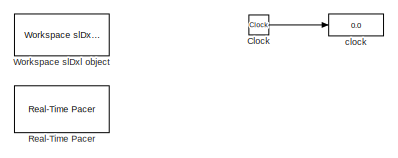
[diagram: root canvas - part 1/3, top left region]
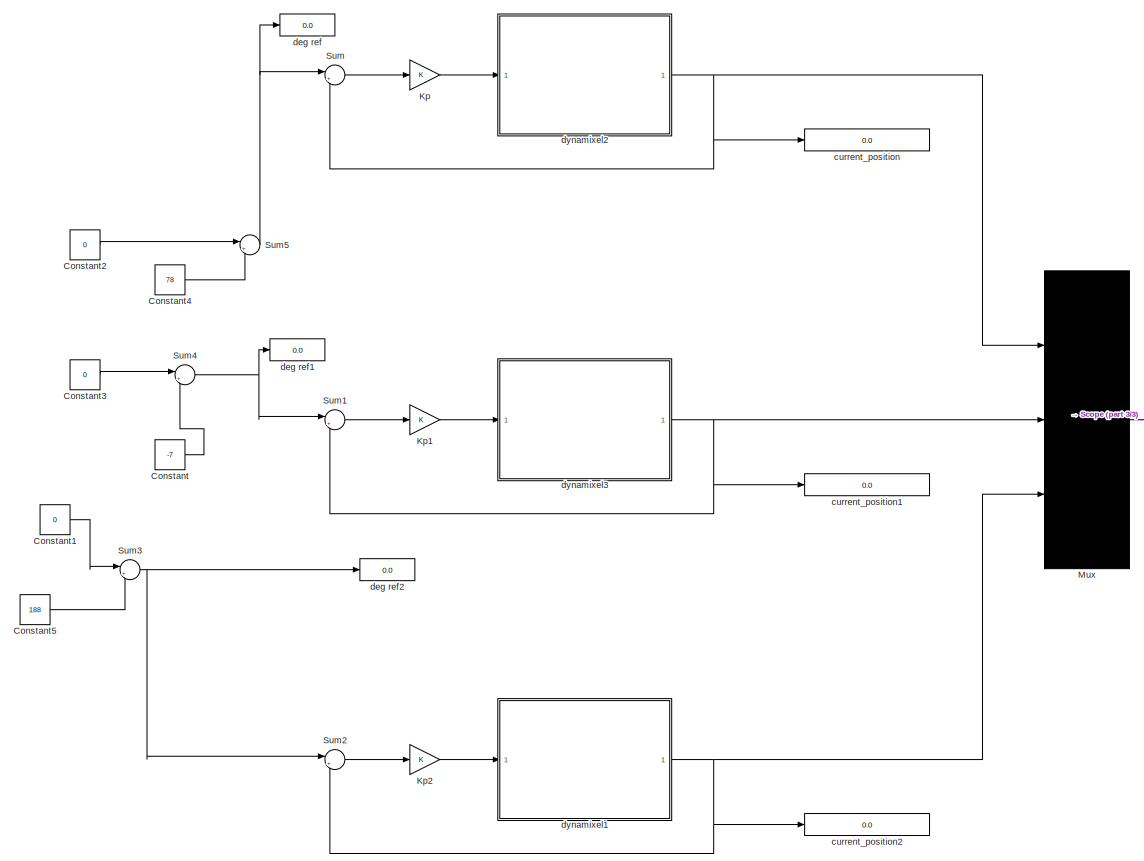
[diagram: root canvas - part 2/3, most of the canvas]
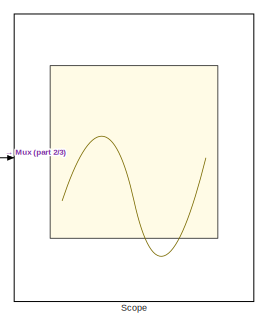
[diagram: root canvas - part 3/3, middle right region]
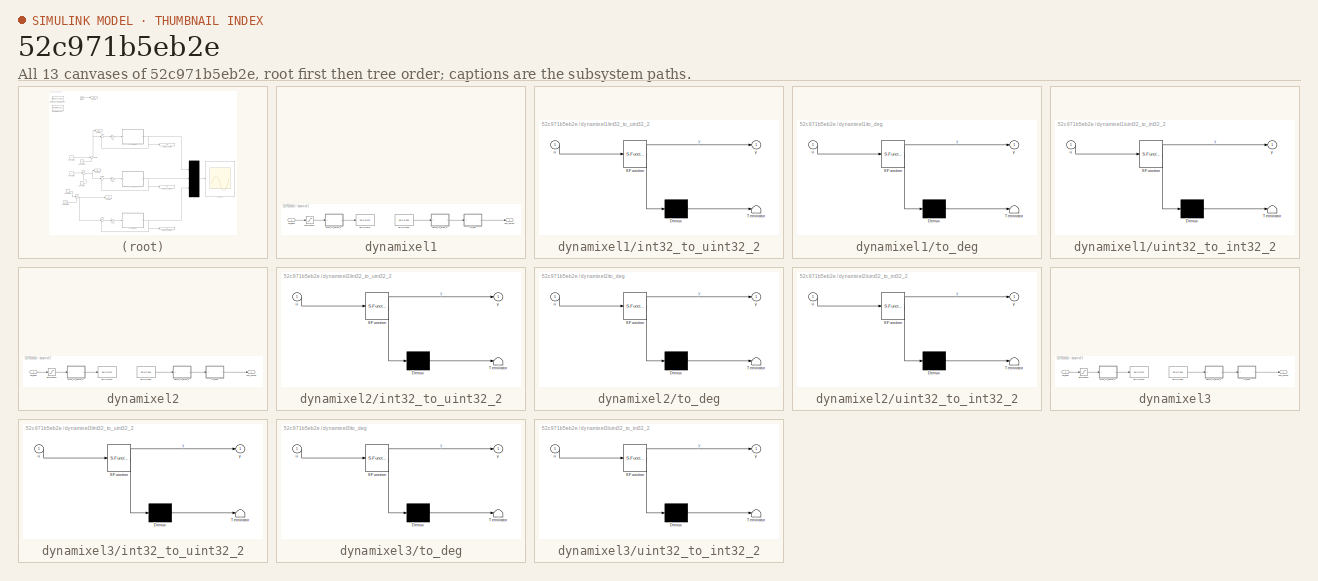
[diagram: thumbnail index - all 13 canvases of the model, root first then tree order]
MODEL slx_52c971b5eb2e
KIND model
CONFIG AbsTol = auto
CONFIG EnableMultiTasking = off
CONFIG FixedStep = Ts
CONFIG MaxStep = auto
CONFIG MinStep = auto
CONFIG RelTol = 1e-3
CONFIG SampleTimeConstraint = Unconstrained
CONFIG SolverName = FixedStepAuto
CONFIG StartTime = 0.0
CONFIG StopTime = inf
BLOCK [Clock] Clock
BLOCK [Constant] Constant
  Value = -7
BLOCK [Constant] Constant1
  Value = 0
BLOCK [Constant] Constant2
  Value = 0
BLOCK [Constant] Constant3
  Value = 0
BLOCK [Constant] Constant4
  Value = 78
BLOCK [Constant] Constant5
  Value = 188
BLOCK [Gain] Kp
BLOCK [Gain] Kp1
BLOCK [Gain] Kp2
BLOCK [Mux] Mux
  DisplayOption = bar
  Inputs = 3
BLOCK [Reference] Real-Time Pacer  REF=slDxl_lib_old/Real-Time Pacer
  Commented = on
  SourceBlock = slDxl_lib_old/Real-Time Pacer
  SourceType = RealTime_Pacer
BLOCK [Scope] Scope
  Floating = off
  NumInputPorts = 1
  ScopeSpecificationString = Simulink.scopes.TimeScopeBlockCfg('CurrentConfiguration', extmgr.ConfigurationSet(extmgr.Configuration('Core','General UI',true,'FigureColor',[0.156862745098039 0.156862745098039 0.156862745098039]),extmgr.Configuration('Core','Source UI',true),extmgr.Configuration('Sources','WiredSimulink',true,'DataLoggingSaveFormat','StructureWithTime','DataLoggingDecimation','1','DataLoggingDecimateData',true)...<+2763ch>
BLOCK [Sum] Sum
  Inputs = |+-
BLOCK [Sum] Sum1
  Inputs = |+-
BLOCK [Sum] Sum2
  Inputs = |+-
BLOCK [Sum] Sum3
  Inputs = |++
BLOCK [Sum] Sum4
  Inputs = |++
BLOCK [Sum] Sum5
  Inputs = |++
BLOCK [Reference] Workspace slDxl object  REF=slDxl_lib_old/Workspace slDxl object
  SourceBlock = slDxl_lib_old/Workspace slDxl object
  SourceType = slDxl Setup
BLOCK [Display] clock
  Decimation = 1
  Format = long
BLOCK [Display] current_position
  Decimation = 5
  Format = long
BLOCK [Display] current_position1
  Decimation = 5
  Format = long
BLOCK [Display] current_position2
  Decimation = 5
  Format = long
BLOCK [Display] deg ref
  Decimation = 1
  Format = long
BLOCK [Display] deg ref1
  Decimation = 1
  Format = long
BLOCK [Display] deg ref2
  Decimation = 1
  Format = long
BLOCK [SubSystem] dynamixel1
BLOCK [Saturate] dynamixel1/Saturation2
  LowerLimit = -50
  NameLocation = top
  UpperLimit = 50
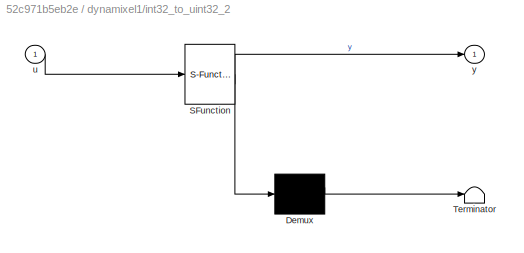
BLOCK [SubSystem] dynamixel1/int32_to_uint32_2
  ErrorFcn = Stateflow.Translate.translate
  PermitHierarchicalResolution = ExplicitOnly
  SFBlockType = MATLAB Function
  TreatAsAtomicUnit = on
BLOCK [Demux] dynamixel1/int32_to_uint32_2/ Demux 
  Outputs = 1
BLOCK [S-Function] dynamixel1/int32_to_uint32_2/ SFunction 
  EnableBusSupport = on
  FunctionName = sf_sfun
  PortCounts = [1 2]
  SFcnIsStateOwnerBlock = off
  SFunctionDeploymentMode = off
  Tag = Stateflow S-Function 7
BLOCK [Terminator] dynamixel1/int32_to_uint32_2/ Terminator 
BLOCK [Inport] dynamixel1/int32_to_uint32_2/u
BLOCK [Outport] dynamixel1/int32_to_uint32_2/y
  VectorParamsAs1DForOutWhenUnconnected = off
BLOCK [Outport] dynamixel1/pos_output
  VectorParamsAs1DForOutWhenUnconnected = off
BLOCK [Reference] dynamixel1/slDxl Read1  REF=slDxl_lib_old/slDxl Read
  SourceBlock = slDxl_lib_old/slDxl Read
BLOCK [Reference] dynamixel1/slDxl Write1  REF=slDxl_lib_old/slDxl Write
  SourceBlock = slDxl_lib_old/slDxl Write
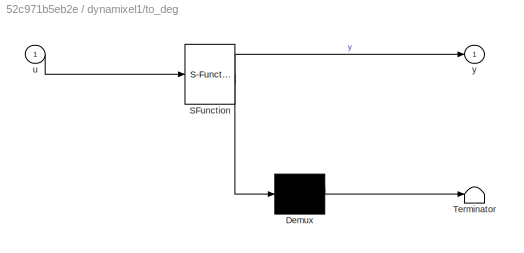
BLOCK [SubSystem] dynamixel1/to_deg
  ErrorFcn = Stateflow.Translate.translate
  PermitHierarchicalResolution = ExplicitOnly
  SFBlockType = MATLAB Function
  TreatAsAtomicUnit = on
BLOCK [Demux] dynamixel1/to_deg/ Demux 
  Outputs = 1
BLOCK [S-Function] dynamixel1/to_deg/ SFunction 
  EnableBusSupport = on
  FunctionName = sf_sfun
  PortCounts = [1 2]
  SFcnIsStateOwnerBlock = off
  SFunctionDeploymentMode = off
  Tag = Stateflow S-Function 8
BLOCK [Terminator] dynamixel1/to_deg/ Terminator 
BLOCK [Inport] dynamixel1/to_deg/u
BLOCK [Outport] dynamixel1/to_deg/y
  VectorParamsAs1DForOutWhenUnconnected = off
BLOCK [SubSystem] dynamixel1/uint32_to_int32_2
  ErrorFcn = Stateflow.Translate.translate
  PermitHierarchicalResolution = ExplicitOnly
  SFBlockType = MATLAB Function
  TreatAsAtomicUnit = on
BLOCK [Demux] dynamixel1/uint32_to_int32_2/ Demux 
  Outputs = 1
BLOCK [S-Function] dynamixel1/uint32_to_int32_2/ SFunction 
  EnableBusSupport = on
  FunctionName = sf_sfun
  PortCounts = [1 2]
  SFcnIsStateOwnerBlock = off
  SFunctionDeploymentMode = off
  Tag = Stateflow S-Function 9
BLOCK [Terminator] dynamixel1/uint32_to_int32_2/ Terminator 
BLOCK [Inport] dynamixel1/uint32_to_int32_2/u
BLOCK [Outport] dynamixel1/uint32_to_int32_2/y
  VectorParamsAs1DForOutWhenUnconnected = off
BLOCK [Inport] dynamixel1/vel_input
BLOCK [SubSystem] dynamixel2
BLOCK [Saturate] dynamixel2/Saturation2
  LowerLimit = -50
  NameLocation = top
  UpperLimit = 50
BLOCK [SubSystem] dynamixel2/int32_to_uint32_2
  ErrorFcn = Stateflow.Translate.translate
  PermitHierarchicalResolution = ExplicitOnly
  SFBlockType = MATLAB Function
  TreatAsAtomicUnit = on
BLOCK [Demux] dynamixel2/int32_to_uint32_2/ Demux 
  Outputs = 1
BLOCK [S-Function] dynamixel2/int32_to_uint32_2/ SFunction 
  EnableBusSupport = on
  FunctionName = sf_sfun
  PortCounts = [1 2]
  SFcnIsStateOwnerBlock = off
  SFunctionDeploymentMode = off
  Tag = Stateflow S-Function 4
BLOCK [Terminator] dynamixel2/int32_to_uint32_2/ Terminator 
BLOCK [Inport] dynamixel2/int32_to_uint32_2/u
BLOCK [Outport] dynamixel2/int32_to_uint32_2/y
  VectorParamsAs1DForOutWhenUnconnected = off
BLOCK [Outport] dynamixel2/pos_output
  VectorParamsAs1DForOutWhenUnconnected = off
BLOCK [Reference] dynamixel2/slDxl Read1  REF=slDxl_lib_old/slDxl Read
  SourceBlock = slDxl_lib_old/slDxl Read
BLOCK [Reference] dynamixel2/slDxl Write1  REF=slDxl_lib_old/slDxl Write
  SourceBlock = slDxl_lib_old/slDxl Write
BLOCK [SubSystem] dynamixel2/to_deg
  ErrorFcn = Stateflow.Translate.translate
  PermitHierarchicalResolution = ExplicitOnly
  SFBlockType = MATLAB Function
  TreatAsAtomicUnit = on
BLOCK [Demux] dynamixel2/to_deg/ Demux 
  Outputs = 1
BLOCK [S-Function] dynamixel2/to_deg/ SFunction 
  EnableBusSupport = on
  FunctionName = sf_sfun
  PortCounts = [1 2]
  SFcnIsStateOwnerBlock = off
  SFunctionDeploymentMode = off
  Tag = Stateflow S-Function 3
BLOCK [Terminator] dynamixel2/to_deg/ Terminator 
BLOCK [Inport] dynamixel2/to_deg/u
BLOCK [Outport] dynamixel2/to_deg/y
  VectorParamsAs1DForOutWhenUnconnected = off
BLOCK [SubSystem] dynamixel2/uint32_to_int32_2
  ErrorFcn = Stateflow.Translate.translate
  PermitHierarchicalResolution = ExplicitOnly
  SFBlockType = MATLAB Function
  TreatAsAtomicUnit = on
BLOCK [Demux] dynamixel2/uint32_to_int32_2/ Demux 
  Outputs = 1
BLOCK [S-Function] dynamixel2/uint32_to_int32_2/ SFunction 
  EnableBusSupport = on
  FunctionName = sf_sfun
  PortCounts = [1 2]
  SFcnIsStateOwnerBlock = off
  SFunctionDeploymentMode = off
  Tag = Stateflow S-Function 1
BLOCK [Terminator] dynamixel2/uint32_to_int32_2/ Terminator 
BLOCK [Inport] dynamixel2/uint32_to_int32_2/u
BLOCK [Outport] dynamixel2/uint32_to_int32_2/y
  VectorParamsAs1DForOutWhenUnconnected = off
BLOCK [Inport] dynamixel2/vel_input
BLOCK [SubSystem] dynamixel3
BLOCK [Saturate] dynamixel3/Saturation2
  LowerLimit = -50
  NameLocation = top
  UpperLimit = 50
BLOCK [SubSystem] dynamixel3/int32_to_uint32_2
  ErrorFcn = Stateflow.Translate.translate
  PermitHierarchicalResolution = ExplicitOnly
  SFBlockType = MATLAB Function
  TreatAsAtomicUnit = on
BLOCK [Demux] dynamixel3/int32_to_uint32_2/ Demux 
  Outputs = 1
BLOCK [S-Function] dynamixel3/int32_to_uint32_2/ SFunction 
  EnableBusSupport = on
  FunctionName = sf_sfun
  PortCounts = [1 2]
  SFcnIsStateOwnerBlock = off
  SFunctionDeploymentMode = off
  Tag = Stateflow S-Function 2
BLOCK [Terminator] dynamixel3/int32_to_uint32_2/ Terminator 
BLOCK [Inport] dynamixel3/int32_to_uint32_2/u
BLOCK [Outport] dynamixel3/int32_to_uint32_2/y
  VectorParamsAs1DForOutWhenUnconnected = off
BLOCK [Outport] dynamixel3/pos_output
  VectorParamsAs1DForOutWhenUnconnected = off
BLOCK [Reference] dynamixel3/slDxl Read1  REF=slDxl_lib_old/slDxl Read
  SourceBlock = slDxl_lib_old/slDxl Read
BLOCK [Reference] dynamixel3/slDxl Write1  REF=slDxl_lib_old/slDxl Write
  SourceBlock = slDxl_lib_old/slDxl Write
BLOCK [SubSystem] dynamixel3/to_deg
  ErrorFcn = Stateflow.Translate.translate
  PermitHierarchicalResolution = ExplicitOnly
  SFBlockType = MATLAB Function
  TreatAsAtomicUnit = on
BLOCK [Demux] dynamixel3/to_deg/ Demux 
  Outputs = 1
BLOCK [S-Function] dynamixel3/to_deg/ SFunction 
  EnableBusSupport = on
  FunctionName = sf_sfun
  PortCounts = [1 2]
  SFcnIsStateOwnerBlock = off
  SFunctionDeploymentMode = off
  Tag = Stateflow S-Function 5
BLOCK [Terminator] dynamixel3/to_deg/ Terminator 
BLOCK [Inport] dynamixel3/to_deg/u
BLOCK [Outport] dynamixel3/to_deg/y
  VectorParamsAs1DForOutWhenUnconnected = off
BLOCK [SubSystem] dynamixel3/uint32_to_int32_2
  ErrorFcn = Stateflow.Translate.translate
  PermitHierarchicalResolution = ExplicitOnly
  SFBlockType = MATLAB Function
  TreatAsAtomicUnit = on
BLOCK [Demux] dynamixel3/uint32_to_int32_2/ Demux 
  Outputs = 1
BLOCK [S-Function] dynamixel3/uint32_to_int32_2/ SFunction 
  EnableBusSupport = on
  FunctionName = sf_sfun
  PortCounts = [1 2]
  SFcnIsStateOwnerBlock = off
  SFunctionDeploymentMode = off
  Tag = Stateflow S-Function 6
BLOCK [Terminator] dynamixel3/uint32_to_int32_2/ Terminator 
BLOCK [Inport] dynamixel3/uint32_to_int32_2/u
BLOCK [Outport] dynamixel3/uint32_to_int32_2/y
  VectorParamsAs1DForOutWhenUnconnected = off
BLOCK [Inport] dynamixel3/vel_input
LINE Clock:1 -> clock:1
LINE Constant1:1 -> Sum3:1
LINE Constant2:1 -> Sum5:1
LINE Constant3:1 -> Sum4:1
LINE Constant4:1 -> Sum5:2
LINE Constant5:1 -> Sum3:2
LINE Constant:1 -> Sum4:2
LINE Kp1:1 -> dynamixel3:1
LINE Kp2:1 -> dynamixel1:1
LINE Kp:1 -> dynamixel2:1
LINE Mux:1 -> Scope:1
LINE Sum1:1 -> Kp1:1
LINE Sum2:1 -> Kp2:1
NET Sum3:1 -> Sum2:1, deg ref2:1
NET Sum4:1 -> Sum1:1, deg ref1:1
NET Sum5:1 -> Sum:1, deg ref:1
LINE Sum:1 -> Kp:1
LINE dynamixel1/Saturation2:1 -> dynamixel1/int32_to_uint32_2:1
LINE dynamixel1/int32_to_uint32_2:1 -> dynamixel1/slDxl Write1:1
LINE dynamixel1/slDxl Read1:1 -> dynamixel1/uint32_to_int32_2:1
LINE dynamixel1/to_deg:1 -> dynamixel1/pos_output:1
LINE dynamixel1/uint32_to_int32_2:1 -> dynamixel1/to_deg:1
LINE dynamixel1/vel_input:1 -> dynamixel1/Saturation2:1
NET dynamixel1:1 -> Mux:3, Sum2:2, current_position2:1
LINE dynamixel2/Saturation2:1 -> dynamixel2/int32_to_uint32_2:1
LINE dynamixel2/int32_to_uint32_2:1 -> dynamixel2/slDxl Write1:1
LINE dynamixel2/slDxl Read1:1 -> dynamixel2/uint32_to_int32_2:1
LINE dynamixel2/to_deg:1 -> dynamixel2/pos_output:1
LINE dynamixel2/uint32_to_int32_2:1 -> dynamixel2/to_deg:1
LINE dynamixel2/vel_input:1 -> dynamixel2/Saturation2:1
NET dynamixel2:1 -> Mux:1, Sum:2, current_position:1
LINE dynamixel3/Saturation2:1 -> dynamixel3/int32_to_uint32_2:1
LINE dynamixel3/int32_to_uint32_2:1 -> dynamixel3/slDxl Write1:1
LINE dynamixel3/slDxl Read1:1 -> dynamixel3/uint32_to_int32_2:1
LINE dynamixel3/to_deg:1 -> dynamixel3/pos_output:1
LINE dynamixel3/uint32_to_int32_2:1 -> dynamixel3/to_deg:1
LINE dynamixel3/vel_input:1 -> dynamixel3/Saturation2:1
NET dynamixel3:1 -> Mux:2, Sum1:2, current_position1:1
note: NET lines group one-source signal fan-out (src -> all destinations, sorted); 1:1 wires keep LINE
CHART dynamixel3/int32_to_uint32_2 states=1 transitions=1
  STATE_LABEL 'eML_blk_kernel()'
  STATE_LABEL "SCRIPT:\nfunction y = fcn(u)\n    temp = typecast(int32(u), 'uint32');\n    y = temp(1);\nend"
CHART dynamixel2/to_deg states=1 transitions=1
  STATE_LABEL 'eML_blk_kernel()'
  STATE_LABEL 'SCRIPT:\nfunction y = fcn(u)\n    y = (u / 4095.0) * 360.0;\nend'
CHART dynamixel2/int32_to_uint32_2 states=1 transitions=1
  STATE_LABEL 'eML_blk_kernel()'
  STATE_LABEL "SCRIPT:\nfunction y = fcn(u)\n    temp = typecast(int32(u), 'uint32');\n    y = temp(1);\nend"
CHART dynamixel3/to_deg states=1 transitions=1
  STATE_LABEL 'eML_blk_kernel()'
  STATE_LABEL 'SCRIPT:\nfunction y = fcn(u)\n    y = (u / 4095.0) * 360.0;\nend'
CHART dynamixel3/uint32_to_int32_2 states=1 transitions=1
  STATE_LABEL 'eML_blk_kernel()'
  STATE_LABEL "SCRIPT:\nfunction y = fcn(u)\n    temp = typecast(uint32(u), 'int32');\n    y = double(temp(1));\nend"
CHART dynamixel1/int32_to_uint32_2 states=1 transitions=1
  STATE_LABEL 'eML_blk_kernel()'
  STATE_LABEL "SCRIPT:\nfunction y = fcn(u)\n    temp = typecast(int32(u), 'uint32');\n    y = temp(1);\nend"
CHART dynamixel1/to_deg states=1 transitions=1
  STATE_LABEL 'eML_blk_kernel()'
  STATE_LABEL 'SCRIPT:\nfunction y = fcn(u)\n    y = (u / 4095.0) * 360.0;\nend'
CHART dynamixel1/uint32_to_int32_2 states=1 transitions=1
  STATE_LABEL 'eML_blk_kernel()'
  STATE_LABEL "SCRIPT:\nfunction y = fcn(u)\n    temp = typecast(uint32(u), 'int32');\n    y = double(temp(1));\nend"
CHART dynamixel2/uint32_to_int32_2 states=1 transitions=1
  STATE_LABEL 'eML_blk_kernel()'
  STATE_LABEL "SCRIPT:\nfunction y = fcn(u)\n    temp = typecast(uint32(u), 'int32');\n    y = double(temp(1));\nend"
CHART  states=0 transitions=0
CHART  states=0 transitions=0
CHART  states=0 transitions=0
CHART  states=0 transitions=0
CHART  states=0 transitions=0
CHART  states=0 transitions=0
CHART  states=0 transitions=0
CHART  states=0 transitions=0
CHART  states=0 transitions=0
